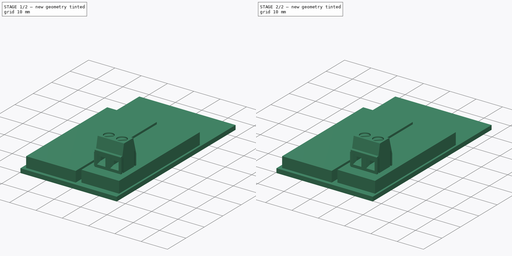
[diagram: build sequence overview — one tinted view per stage of 2, left to right]
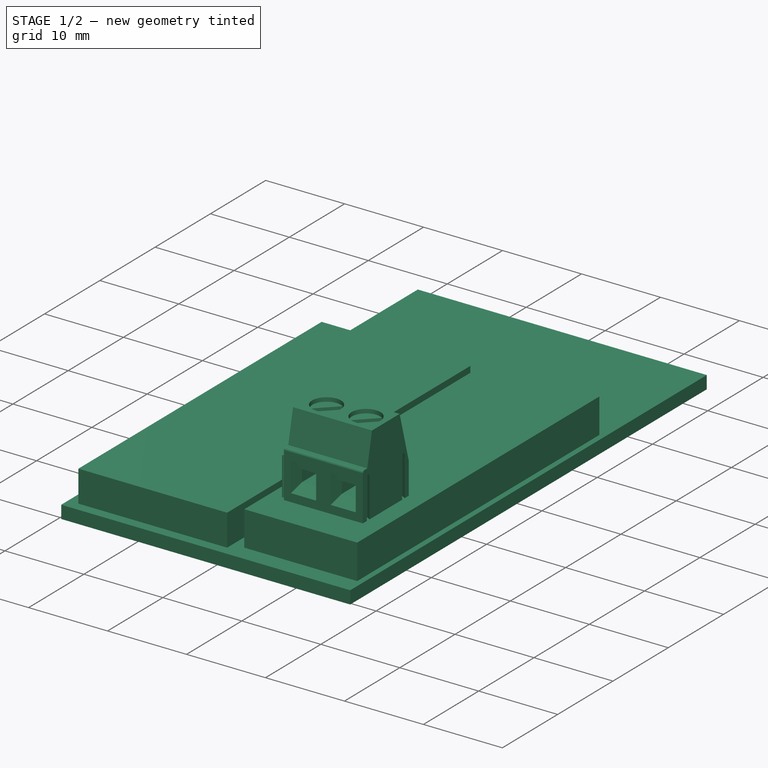
[diagram: stage 1 of 2 — iso view after this stage's code; geometry added in this stage tinted green]
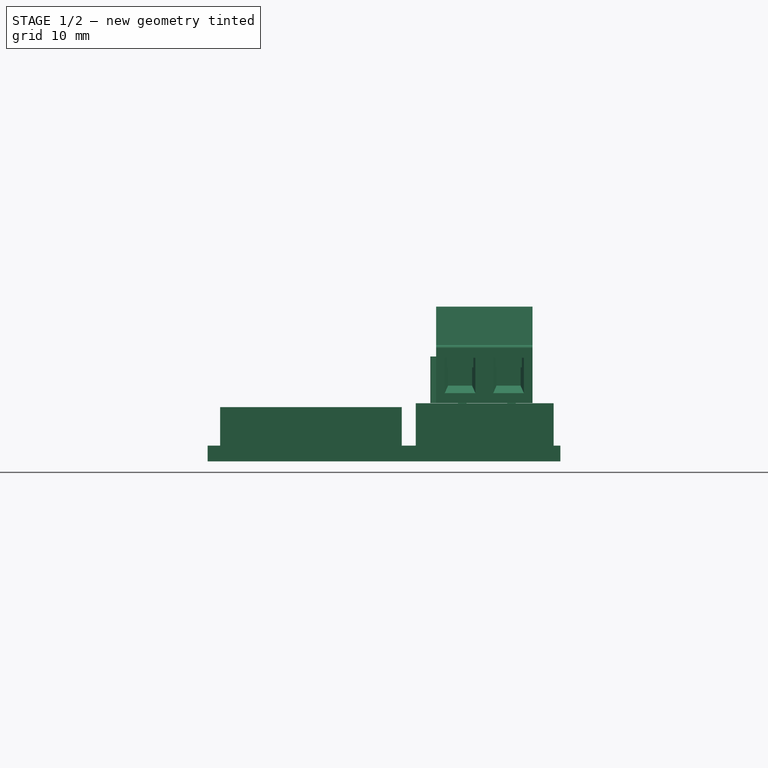
[diagram: stage 1 of 2 — front view after this stage's code; geometry added in this stage tinted green]
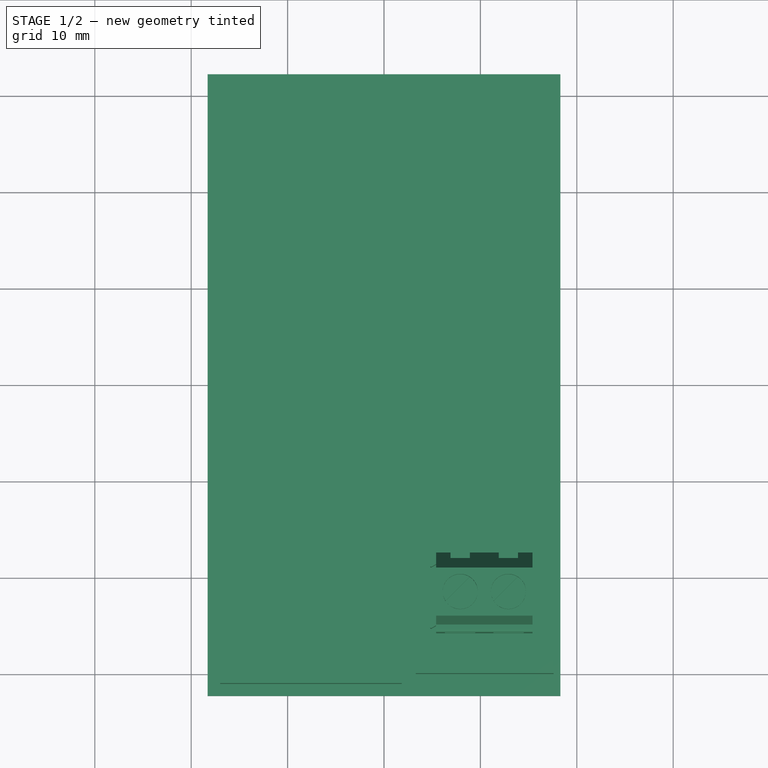
[diagram: stage 1 of 2 — top view after this stage's code; geometry added in this stage tinted green]
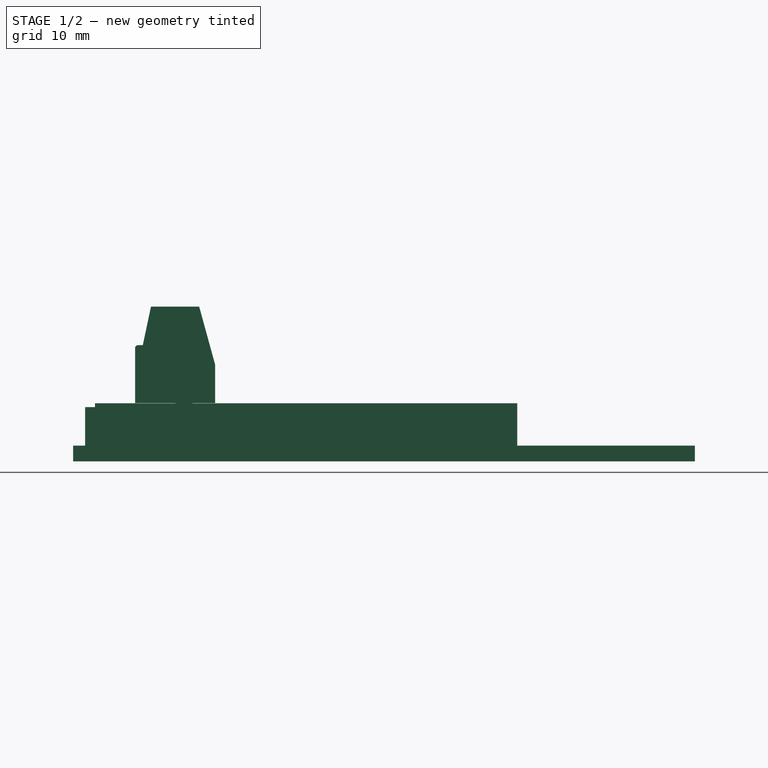
[diagram: stage 1 of 2 — right view after this stage's code; geometry added in this stage tinted green]
FCSTD DOCUMENT  (FreeCAD 0.16R5841 (Git))
Label: RpiModule
License: CreativeCommons Attribution-ShareAlike
LicenseURL: http://creativecommons.org/licenses/by-sa/4.0/
objects: Part::Feature×4, Sketcher::SketchObject×3, PartDesign::Pad×3, Part::MultiFuse×1
note: 14 computed .brp shape members not serialized (recipe doc carries the construction recipe); baked Part::Feature solids carry a one-line shape summary decoded from their .brp

FEATURE [Sketcher::SketchObject] Sketch
  sketch-geometry (4):
    g0: LineSegment StartX=-18.3 StartY=32.25 StartZ=0 EndX=18.3 EndY=32.25 EndZ=0
    g1: LineSegment StartX=18.3 StartY=32.25 StartZ=0 EndX=18.3 EndY=-32.25 EndZ=0
    g2: LineSegment StartX=18.3 StartY=-32.25 StartZ=0 EndX=-18.3 EndY=-32.25 EndZ=0
    g3: LineSegment StartX=-18.3 StartY=-32.25 StartZ=0 EndX=-18.3 EndY=32.25 EndZ=0
  constraints (12):
    c: Coincident(g0,g1)
    c: Coincident(g1,g2)
    c: Coincident(g2,g3)
    c: Coincident(g3,g0)
    c: Horizontal(g0)
    c: Horizontal(g2)
    c: Vertical(g1)
    c: Vertical(g3)
    c: Symmetric(g0,g1,g-1)
    c: Symmetric(g0,g0,g-2)
    c: DistanceY(g1) = -64.5
    c: DistanceX(g0) = 36.6
FEATURE [PartDesign::Pad] Pad
  Length = 1.63
  Length2 = 100
  Sketch = -> Sketch
  Type = 0
FEATURE [Part::Feature] Shape
  Placement = pos=(10.4049,-21.6733,6.05547) rot=(0,0,-1;1.5708rad)
  shape: bbox 10.6 x 8.348 x 13.8 mm, 106 faces, 5 solids (baked)
FEATURE [Part::Feature] Pad002001  label="Pad003"
  shape: bbox 36.6 x 64.5 x 6.03 mm, 16 faces (baked)
FEATURE [Part::MultiFuse] Fusion
  Shapes = -> [Shape,Pad002001]
FEATURE [Part::Feature] Fusion002002  label="Fusion001"
  shape: bbox 36.6 x 64.5 x 16.06 mm, 112 faces, 4 solids (baked)
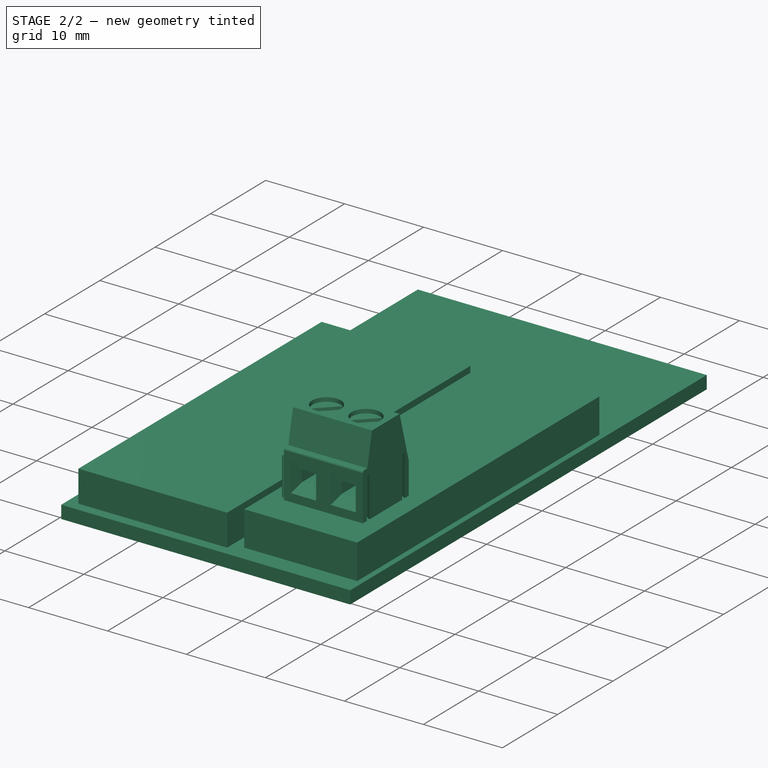
[diagram: stage 2 of 2 — iso view after this stage's code; geometry added in this stage tinted green]
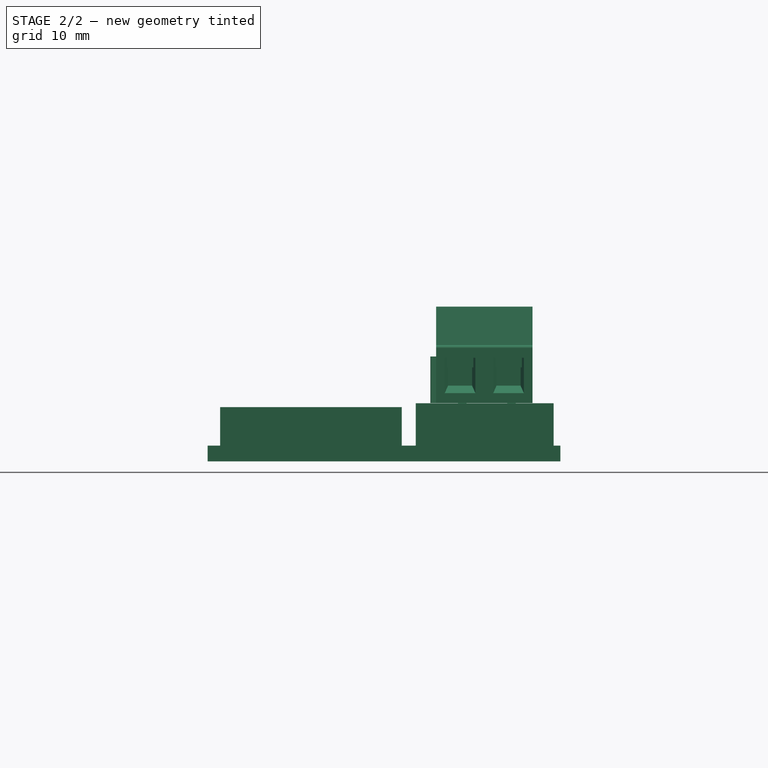
[diagram: stage 2 of 2 — front view after this stage's code; geometry added in this stage tinted green]
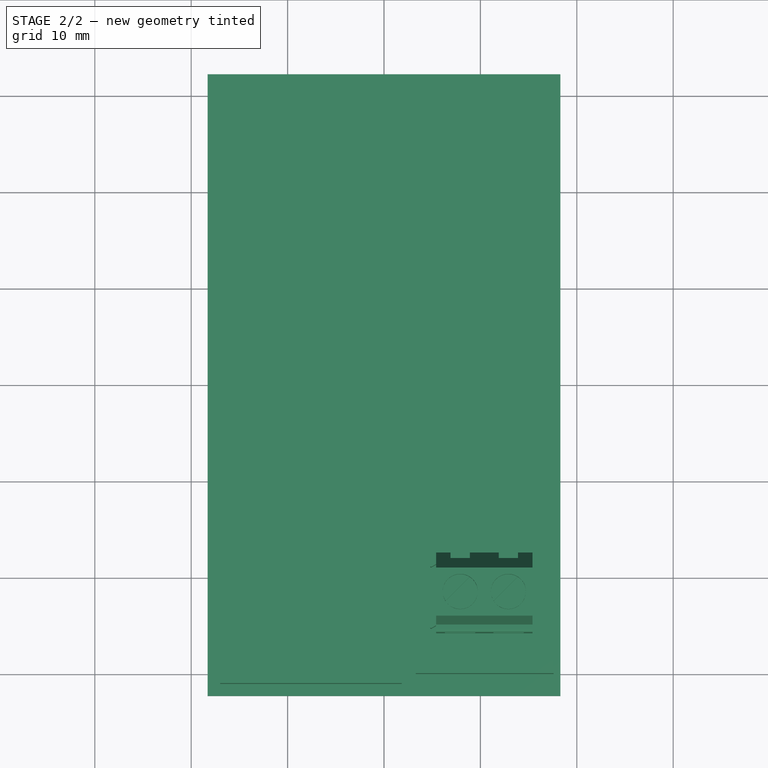
[diagram: stage 2 of 2 — top view after this stage's code; geometry added in this stage tinted green]
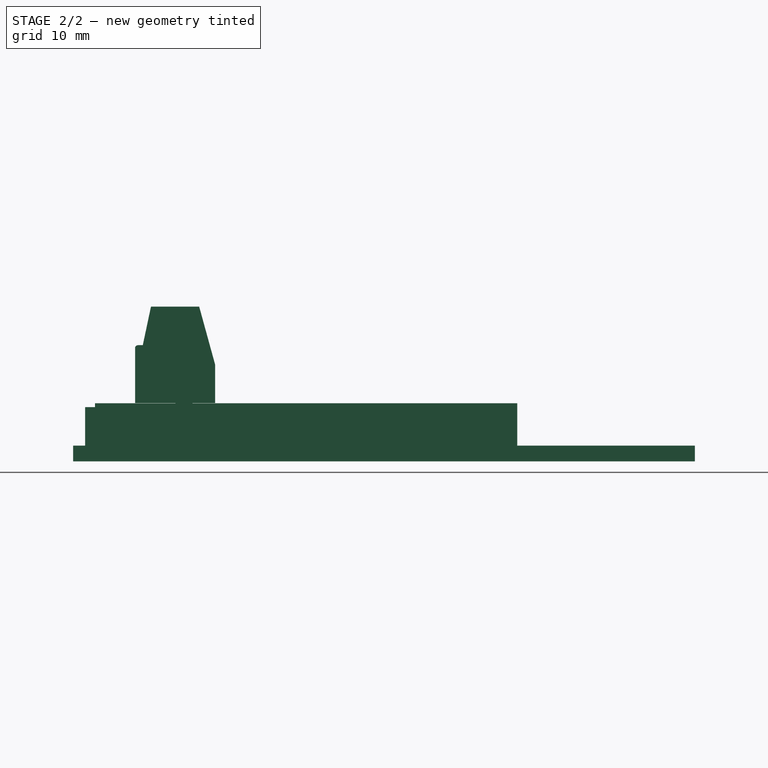
[diagram: stage 2 of 2 — right view after this stage's code; geometry added in this stage tinted green]
FEATURE [Sketcher::SketchObject] Sketch001
  ExternalGeometry = -> [Pad]
  Placement = pos=(0,0,1.63) rot=(0,0,1;0rad)
  Support = -> Pad [Face6]
  sketch-geometry (4):
    g0: LineSegment StartX=-17 StartY=13 StartZ=0 EndX=1.84 EndY=13 EndZ=0
    g1: LineSegment StartX=1.84 StartY=13 StartZ=0 EndX=1.84 EndY=-31 EndZ=0
    g2: LineSegment StartX=1.84 StartY=-31 StartZ=0 EndX=-17 EndY=-31 EndZ=0
    g3: LineSegment StartX=-17 StartY=-31 StartZ=0 EndX=-17 EndY=13 EndZ=0
  constraints (12):
    c: Coincident(g0,g1)
    c: Coincident(g1,g2)
    c: Coincident(g2,g3)
    c: Coincident(g3,g0)
    c: Horizontal(g0)
    c: Horizontal(g2)
    c: Vertical(g1)
    c: Vertical(g3)
    c: DistanceX(g2) = -18.84
    c: DistanceY(g1) = -44
    c: DistanceX(g-4,g2) = 1.3
    c: DistanceY(g-4,g2) = 1.25
FEATURE [PartDesign::Pad] Pad001
  Length = 4
  Length2 = 100
  Sketch = -> Sketch001
  Type = 0
FEATURE [Part::Feature] Fusion002001  label="usb_micro"
  Placement = pos=(6.5,-47.6132,0.3) rot=(1,0,0;1.5708rad)
  shape: bbox 7.999 x 5.462 x 2.949 mm, 1247 faces (baked)
FEATURE [Sketcher::SketchObject] Sketch002
  ExternalGeometry = -> [Pad001]
  Placement = pos=(0,0,1.63) rot=(0,0,1;0rad)
  Support = -> Pad001 [Face5]
  sketch-geometry (4):
    g0: LineSegment StartX=3.3 StartY=13.82 StartZ=0 EndX=17.6 EndY=13.82 EndZ=0
    g1: LineSegment StartX=17.6 StartY=13.82 StartZ=0 EndX=17.6 EndY=-29.98 EndZ=0
    g2: LineSegment StartX=17.6 StartY=-29.98 StartZ=0 EndX=3.3 EndY=-29.98 EndZ=0
    g3: LineSegment StartX=3.3 StartY=-29.98 StartZ=0 EndX=3.3 EndY=13.82 EndZ=0
  constraints (12):
    c: Coincident(g0,g1)
    c: Coincident(g1,g2)
    c: Coincident(g2,g3)
    c: Coincident(g3,g0)
    c: Horizontal(g0)
    c: Horizontal(g2)
    c: Vertical(g1)
    c: Vertical(g3)
    c: DistanceX(g0) = 14.3
    c: DistanceY(g1) = -43.8
    c: DistanceX(g1,g-4) = 0.7
    c: DistanceY(g1,g-4) = -2.27
FEATURE [PartDesign::Pad] Pad002
  Length = 4.4
  Length2 = 100
  Sketch = -> Sketch002
  Type = 0
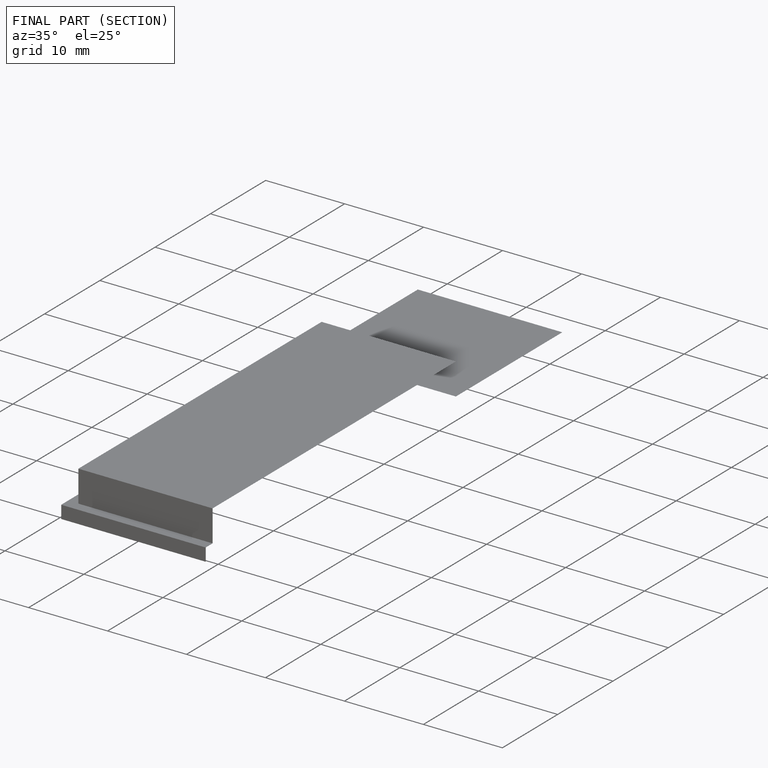
[diagram: finished part — half-section view (interior)]
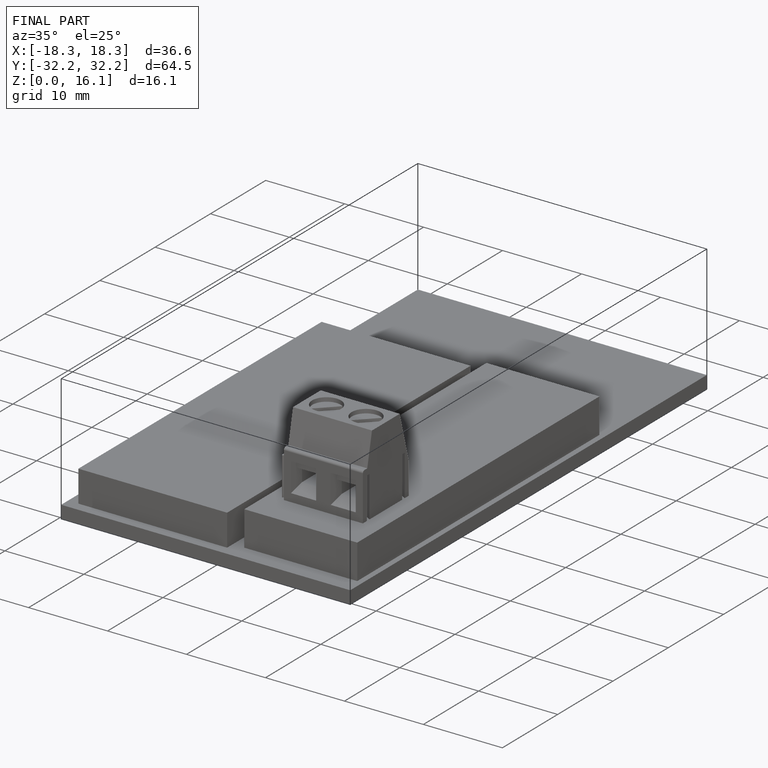
[diagram: finished part — iso view with bounding-box wireframe]
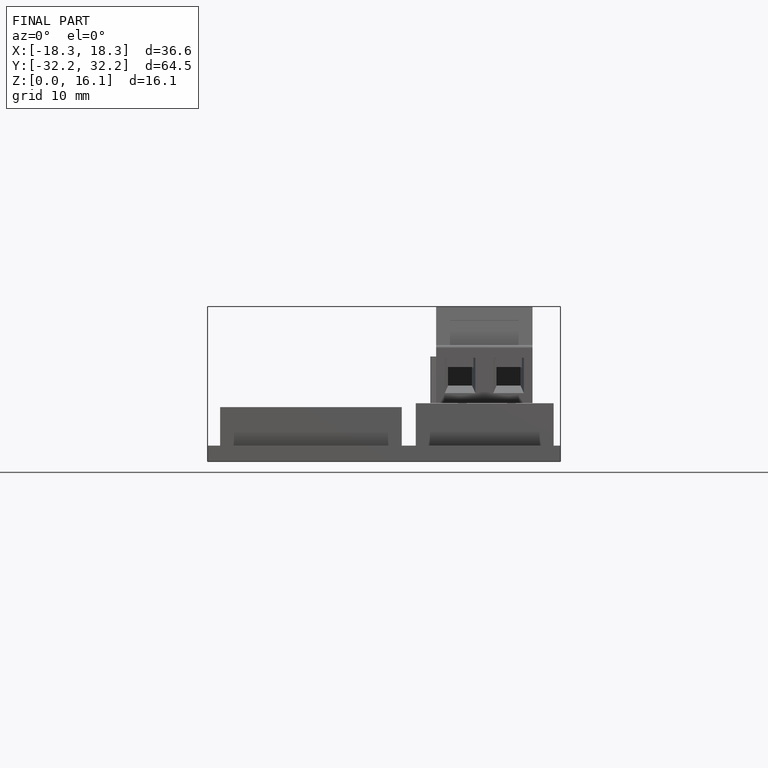
[diagram: finished part — front view with bounding-box wireframe]
